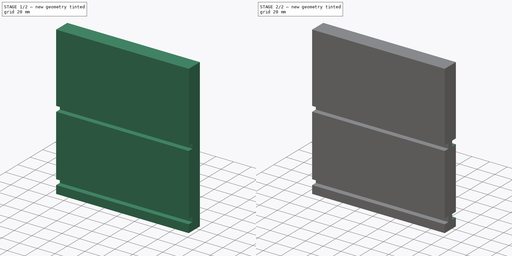
[diagram: build sequence overview — one tinted view per stage of 2, left to right]
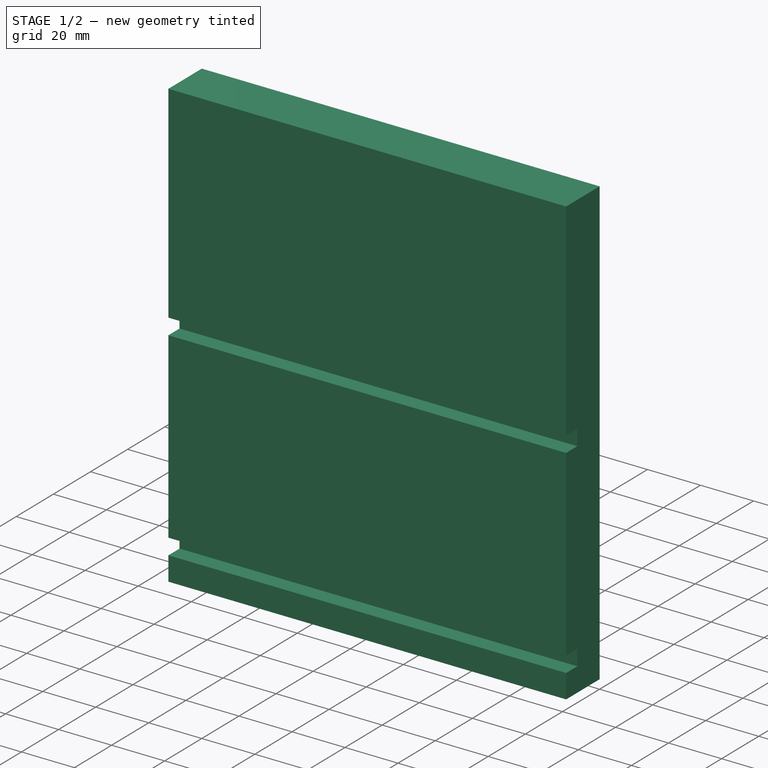
[diagram: stage 1 of 2 — iso view after this stage's code; geometry added in this stage tinted green]
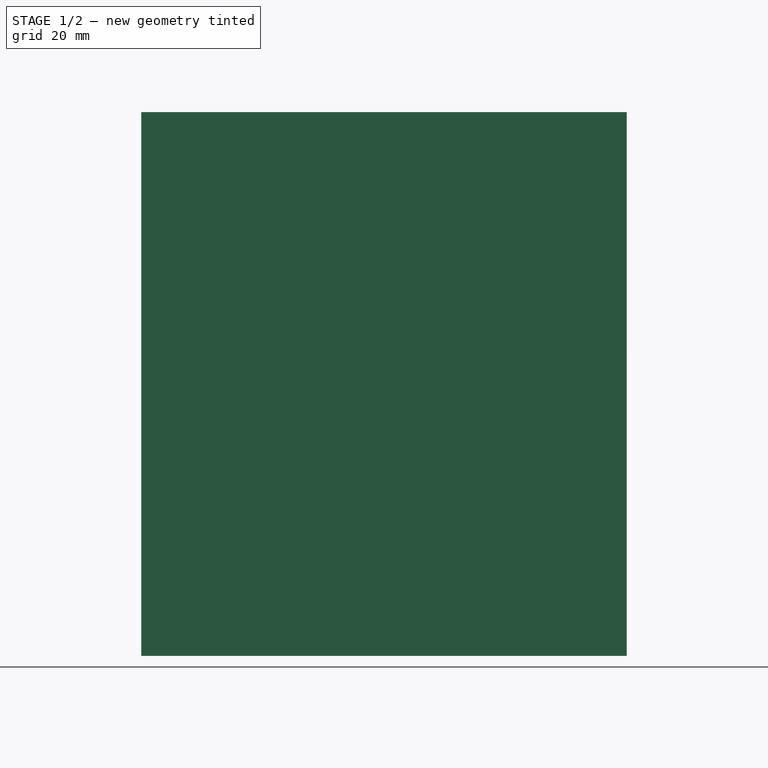
[diagram: stage 1 of 2 — front view after this stage's code; geometry added in this stage tinted green]
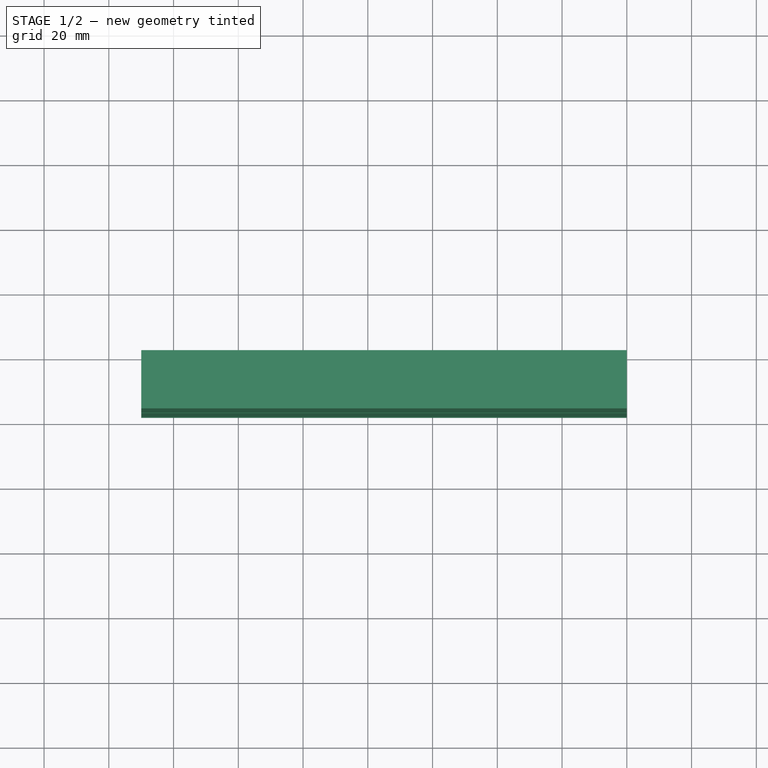
[diagram: stage 1 of 2 — top view after this stage's code; geometry added in this stage tinted green]
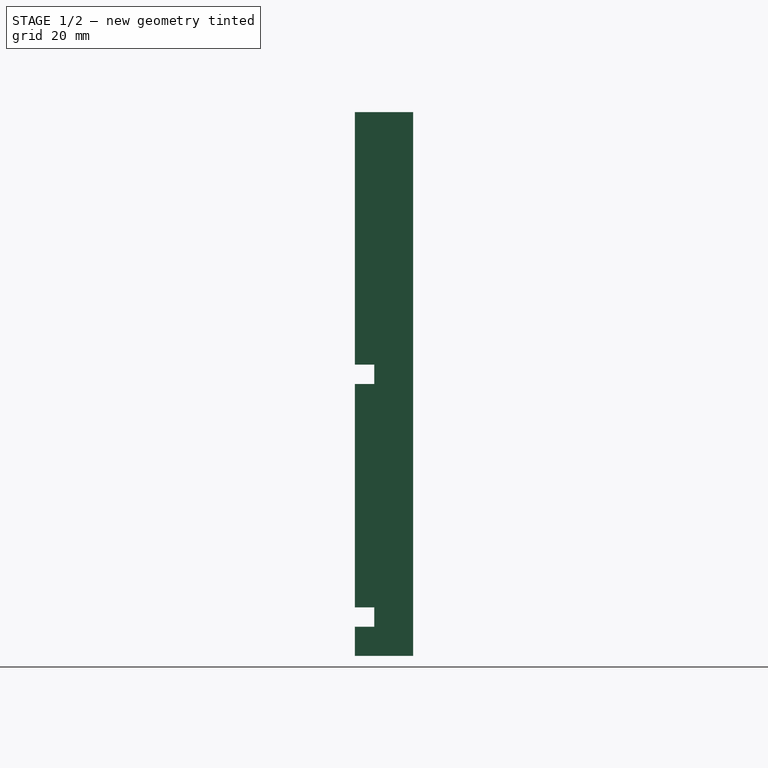
[diagram: stage 1 of 2 — right view after this stage's code; geometry added in this stage tinted green]
FCSTD DOCUMENT  (FreeCAD 0.18R4 (GitTag))
Label: divider
License: All rights reserved
LicenseURL: http://en.wikipedia.org/wiki/All_rights_reserved
objects: Sketcher::SketchObject×3, PartDesign::Pocket×2, PartDesign::Pad×1, PartDesign::Body×1
note: 10 computed .brp shape members not serialized (recipe doc carries the construction recipe); baked Part::Feature solids carry a one-line shape summary decoded from their .brp

FEATURE [Sketcher::SketchObject] Sketch
  MapMode = 5
  Placement = pos=(0,0,0) rot=(1,0,0;1.5708rad)
  Support = -> [XZ_Plane]
  sketch-geometry (4):
    g0: LineSegment StartX=0 StartY=0 StartZ=0 EndX=-150 EndY=0 EndZ=0
    g1: LineSegment StartX=-150 StartY=0 StartZ=0 EndX=-150 EndY=168 EndZ=0
    g2: LineSegment StartX=-150 StartY=168 StartZ=0 EndX=0 EndY=168 EndZ=0
    g3: LineSegment StartX=0 StartY=168 StartZ=0 EndX=0 EndY=0 EndZ=0
  constraints (11):
    c: Coincident(g0,g1)
    c: Coincident(g1,g2)
    c: Coincident(g2,g3)
    c: Coincident(g3,g0)
    c: Horizontal(g0)
    c: Horizontal(g2)
    c: Vertical(g1)
    c: Vertical(g3)
    c: Coincident(g0,g-1)
    c: DistanceY(g3,g3) = 168
    c: DistanceX(g0,g0) = 150
FEATURE [PartDesign::Pad] Pad
  Length = 18
  Length2 = 100
  Placement = pos=(0,0,0) rot=(1,0,0;1.5708rad)
  Profile = -> Sketch
  Type = 0
FEATURE [Sketcher::SketchObject] Sketch001
  MapMode = 5
  Placement = pos=(0,-18,8e-15) rot=(1,0,0;1.5708rad)
  Support = -> [Pad]
  sketch-geometry (8):
    g0: LineSegment StartX=0 StartY=9 StartZ=0 EndX=-150 EndY=9 EndZ=0
    g1: LineSegment StartX=-150 StartY=9 StartZ=0 EndX=-150 EndY=15 EndZ=0
    g2: LineSegment StartX=-150 StartY=15 StartZ=0 EndX=0 EndY=15 EndZ=0
    g3: LineSegment StartX=0 StartY=15 StartZ=0 EndX=0 EndY=9 EndZ=0
    g4: LineSegment StartX=0 StartY=84 StartZ=0 EndX=-150 EndY=84 EndZ=0
    g5: LineSegment StartX=-150 StartY=84 StartZ=0 EndX=-150 EndY=90 EndZ=0
    g6: LineSegment StartX=-150 StartY=90 StartZ=0 EndX=0 EndY=90 EndZ=0
    g7: LineSegment StartX=0 StartY=90 StartZ=0 EndX=0 EndY=84 EndZ=0
  constraints (24):
    c: Coincident(g0,g1)
    c: Coincident(g1,g2)
    c: Coincident(g2,g3)
    c: Coincident(g3,g0)
    c: Horizontal(g0)
    c: Horizontal(g2)
    c: Vertical(g1)
    c: Vertical(g3)
    c: Coincident(g4,g5)
    c: Coincident(g5,g6)
    c: Coincident(g6,g7)
    c: Coincident(g7,g4)
    c: Horizontal(g4)
    c: Horizontal(g6)
    c: Vertical(g5)
    c: Vertical(g7)
    c: PointOnObject(g0,g-2)
    c: PointOnObject(g4,g-2)
    c: DistanceY(g-1,g0) = 9
    c: DistanceY(g3,g3) = 6
    c: DistanceY(g7,g7) = 6
    c: DistanceX(g0,g0) = 150
    c: DistanceX(g1,g4) = 0
    c: DistanceY(g0,g4) = 75
FEATURE [PartDesign::Pocket] Pocket
  BaseFeature = -> Pad
  Length = 6
  Length2 = 100
  Placement = pos=(0,0,0) rot=(1,0,0;1.5708rad)
  Profile = -> Sketch001
  Type = 0
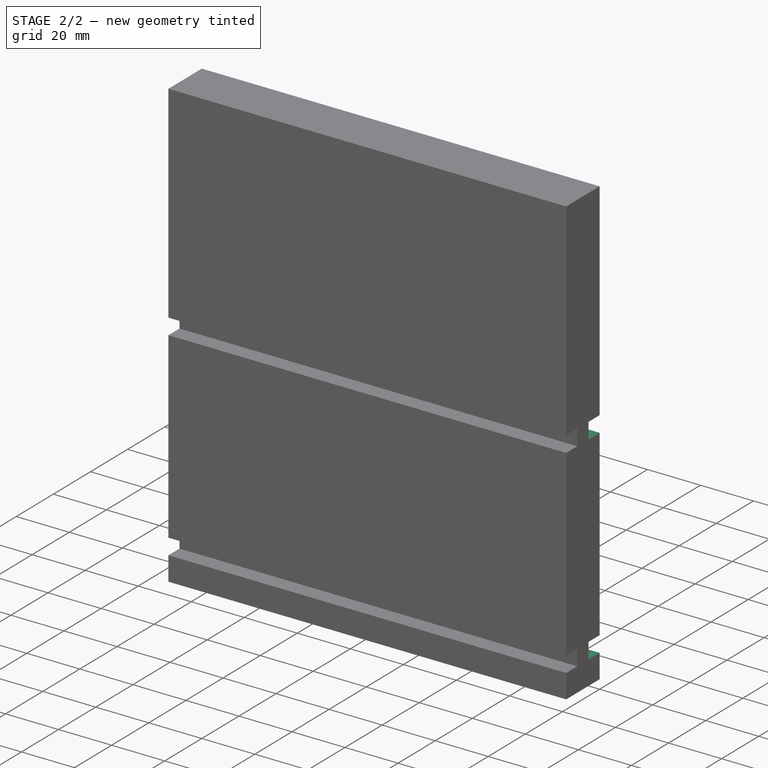
[diagram: stage 2 of 2 — iso view after this stage's code; geometry added in this stage tinted green]
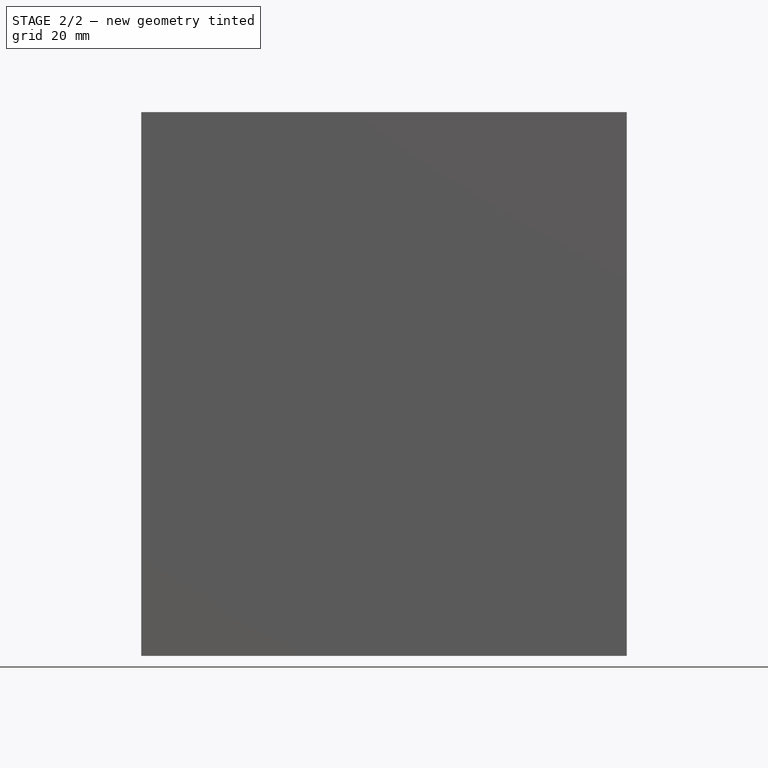
[diagram: stage 2 of 2 — front view after this stage's code; geometry added in this stage tinted green]
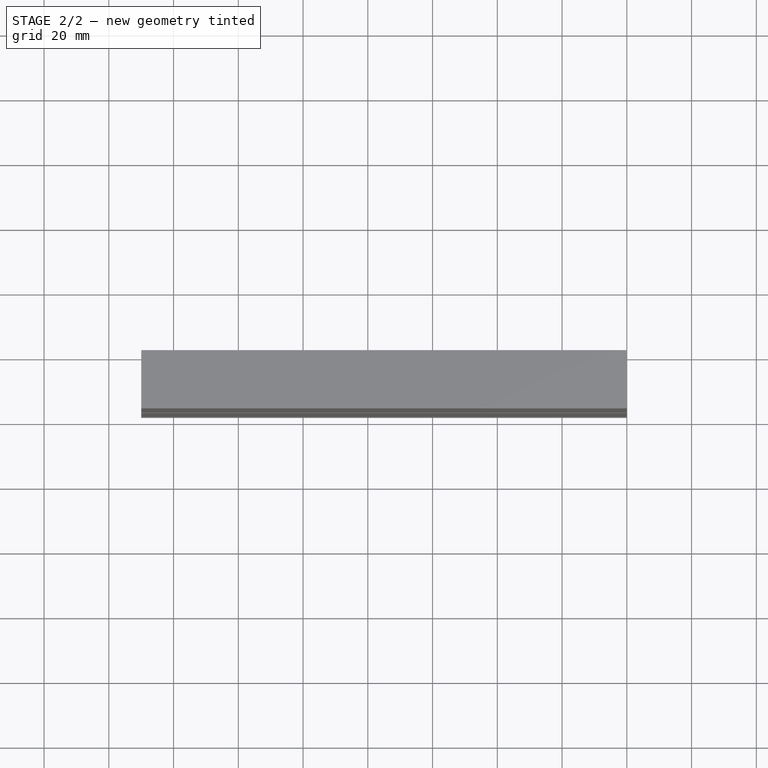
[diagram: stage 2 of 2 — top view after this stage's code; geometry added in this stage tinted green]
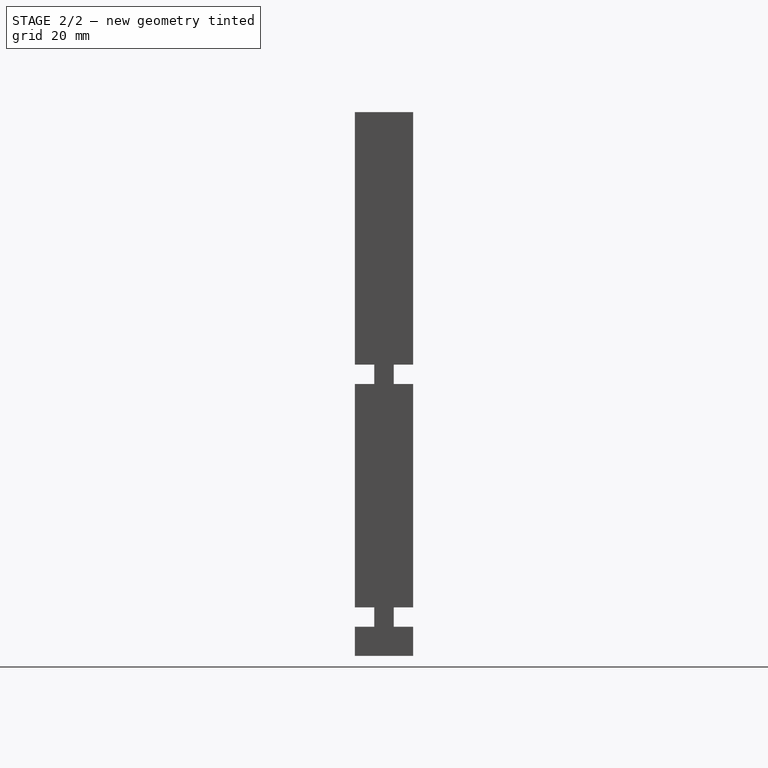
[diagram: stage 2 of 2 — right view after this stage's code; geometry added in this stage tinted green]
FEATURE [Sketcher::SketchObject] Sketch002
  MapMode = 5
  Placement = pos=(0,2e-16,0) rot=(-1,0,0;1.5708rad)
  Support = -> [Pocket]
  sketch-geometry (8):
    g0: LineSegment StartX=0 StartY=-9 StartZ=0 EndX=-150 EndY=-9 EndZ=0
    g1: LineSegment StartX=-150 StartY=-9 StartZ=0 EndX=-150 EndY=-15 EndZ=0
    g2: LineSegment StartX=-150 StartY=-15 StartZ=0 EndX=0 EndY=-15 EndZ=0
    g3: LineSegment StartX=0 StartY=-15 StartZ=0 EndX=0 EndY=-9 EndZ=0
    g4: LineSegment StartX=0 StartY=-84 StartZ=0 EndX=-150 EndY=-84 EndZ=0
    g5: LineSegment StartX=-150 StartY=-84 StartZ=0 EndX=-150 EndY=-90 EndZ=0
    g6: LineSegment StartX=-150 StartY=-90 StartZ=0 EndX=0 EndY=-90 EndZ=0
    g7: LineSegment StartX=0 StartY=-90 StartZ=0 EndX=0 EndY=-84 EndZ=0
  constraints (24):
    c: Coincident(g0,g1)
    c: Coincident(g1,g2)
    c: Coincident(g2,g3)
    c: Coincident(g3,g0)
    c: Horizontal(g0)
    c: Horizontal(g2)
    c: Vertical(g1)
    c: Vertical(g3)
    c: Coincident(g4,g5)
    c: Coincident(g5,g6)
    c: Coincident(g6,g7)
    c: Coincident(g7,g4)
    c: Horizontal(g4)
    c: Horizontal(g6)
    c: Vertical(g5)
    c: Vertical(g7)
    c: DistanceY(g0,g-1) = 9
    c: DistanceY(g3,g3) = 6
    c: DistanceY(g7,g7) = 6
    c: PointOnObject(g0,g-2)
    c: PointOnObject(g4,g-2)
    c: DistanceX(g0,g0) = 150
    c: DistanceX(g1,g4) = 0
    c: DistanceY(g4,g0) = 75
FEATURE [PartDesign::Pocket] Pocket001
  BaseFeature = -> Pocket
  Length = 6
  Length2 = 100
  Placement = pos=(0,0,0) rot=(1,0,0;1.5708rad)
  Profile = -> Sketch002
  Type = 0
FEATURE [PartDesign::Body] Body
  Group = -> [Sketch,Pad,Sketch001,Pocket,Sketch002,Pocket001]
  Origin = -> Origin
  Tip = -> Pocket001
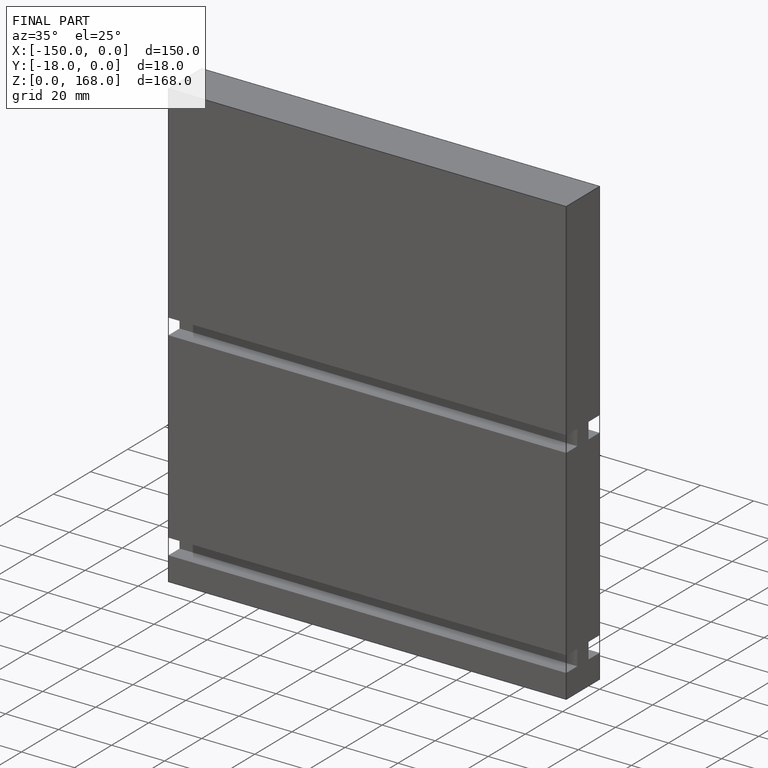
[diagram: finished part — iso view with bounding-box wireframe]
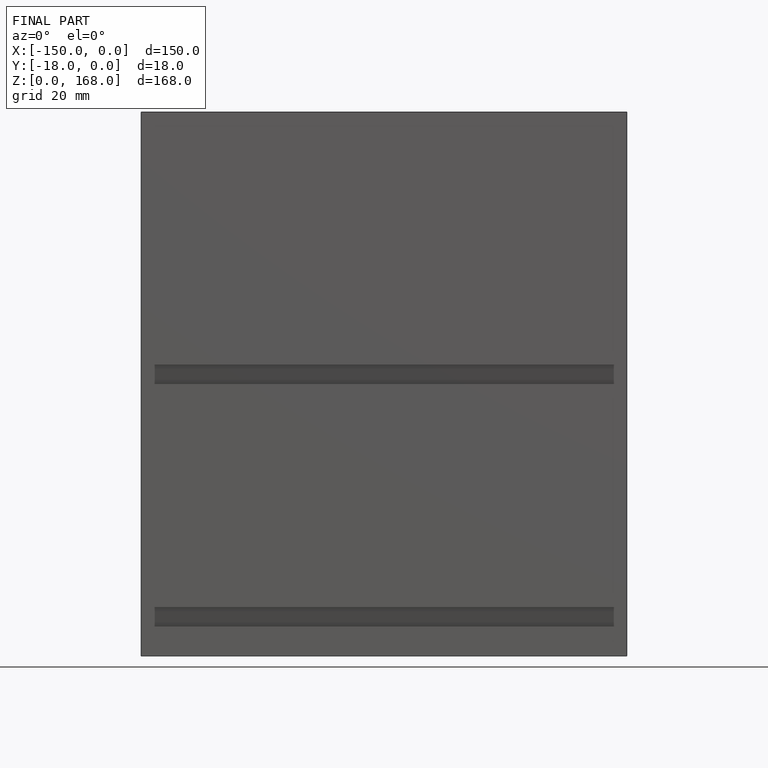
[diagram: finished part — front view with bounding-box wireframe]
